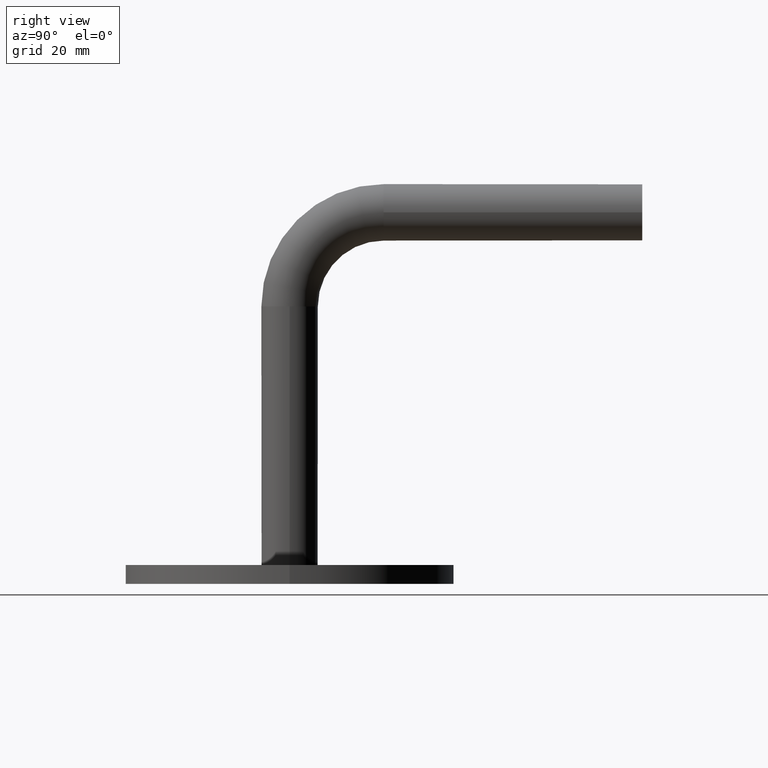
[diagram: clean part render]
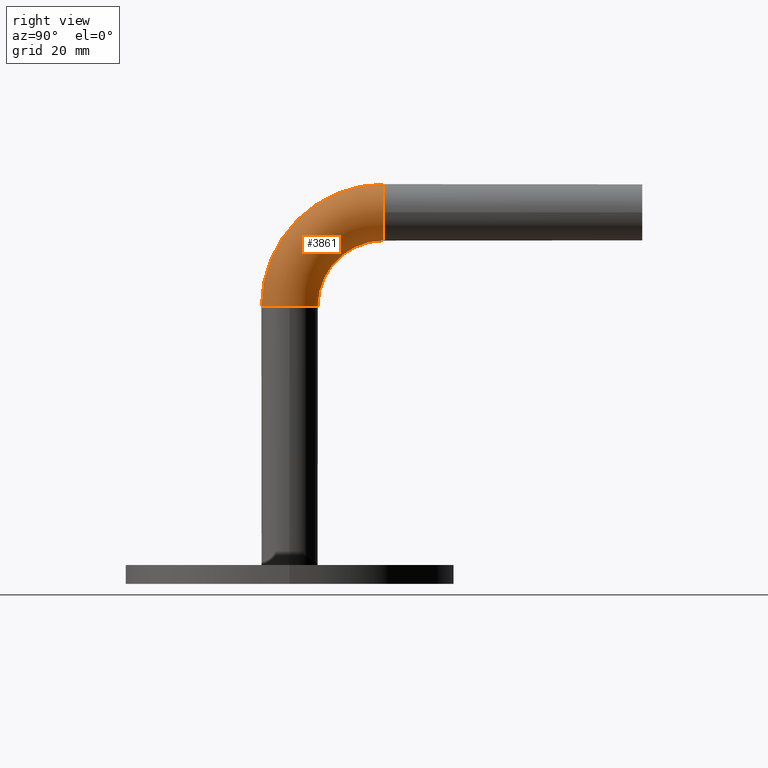
[diagram: same view with one face highlighted and labeled with its STEP entity id]
A machine part, right view. The second image highlights one B-rep face of the part: STEP entity #3861.
In plain terms, the highlighted toroidal blend (fillet) surface has major radius 20 mm and minor (blend) radius 6 mm.
Its self-contained STEP definition (entity closure, byte-faithful):
#117 = DIRECTION ( 'NONE',  ( 0.0000000000000000000, -1.000000000000000000, -6.123233995736766000E-017 ) ) ;
#121 = DIRECTION ( 'NONE',  ( -1.000000000000000000, 0.0000000000000000000, 0.0000000000000000000 ) ) ;
#246 = VERTEX_POINT ( 'NONE', #3327 ) ;
#432 = EDGE_CURVE ( 'NONE', #10340, #13225, #6263, .T. ) ;
#499 = CARTESIAN_POINT ( 'NONE',  ( 0.0000000000000000000, 20.00000000000000000, 59.00000000000000000 ) ) ;
#551 = CARTESIAN_POINT ( 'NONE',  ( 7.347880794884114800E-016, 19.99999999999999600, 72.99999999999998600 ) ) ;
#1333 = DIRECTION ( 'NONE',  ( -1.000000000000000000, 0.0000000000000000000, 0.0000000000000000000 ) ) ;
#1544 = EDGE_CURVE ( 'NONE', #9849, #13225, #3275, .T. ) ;
#1797 = AXIS2_PLACEMENT_3D ( 'NONE', #499, #14059, #11715 ) ;
#2358 = ORIENTED_EDGE ( 'NONE', *, *, #10492, .T. ) ;
#2475 = AXIS2_PLACEMENT_3D ( 'NONE', #4130, #3944, #8486 ) ;
#2946 = AXIS2_PLACEMENT_3D ( 'NONE', #6673, #6826, #7810 ) ;
#2968 = DIRECTION ( 'NONE',  ( -1.000000000000000000, 0.0000000000000000000, 0.0000000000000000000 ) ) ;
#3113 = CARTESIAN_POINT ( 'NONE',  ( 0.0000000000000000000, 20.00000000000000000, 59.00000000000000000 ) ) ;
#3275 = CIRCLE ( 'NONE', #5374, 25.99999999999999600 ) ;
#3282 = EDGE_LOOP ( 'NONE', ( #10878, #9181, #8622, #11745, #2358, #10514 ) ) ;
#3327 = CARTESIAN_POINT ( 'NONE',  ( 7.347880794884119700E-016, 6.000000000000000900, 59.00000000000000000 ) ) ;
#3861 = ADVANCED_FACE ( 'NONE', ( #6593 ), #6963, .T. ) ;
#3944 = DIRECTION ( 'NONE',  ( 0.0000000000000000000, 0.0000000000000000000, -1.000000000000000000 ) ) ;
#4130 = CARTESIAN_POINT ( 'NONE',  ( 0.0000000000000000000, 0.0000000000000000000, 59.00000000000000000 ) ) ;
#4594 = CARTESIAN_POINT ( 'NONE',  ( 0.0000000000000000000, 19.99999999999999600, 84.99999999999998600 ) ) ;
#4727 = CARTESIAN_POINT ( 'NONE',  ( 0.0000000000000000000, 19.99999999999999600, 78.99999999999998600 ) ) ;
#4810 = EDGE_CURVE ( 'NONE', #246, #5757, #8193, .T. ) ;
#5374 = AXIS2_PLACEMENT_3D ( 'NONE', #3113, #7480, #7569 ) ;
#5385 = AXIS2_PLACEMENT_3D ( 'NONE', #7472, #2968, #13199 ) ;
#5757 = VERTEX_POINT ( 'NONE', #9106 ) ;
#6263 = CIRCLE ( 'NONE', #2946, 6.000000000000000900 ) ;
#6593 = FACE_OUTER_BOUND ( 'NONE', #3282, .T. ) ;
#6673 = CARTESIAN_POINT ( 'NONE',  ( 0.0000000000000000000, 19.99999999999999600, 78.99999999999998600 ) ) ;
#6826 = DIRECTION ( 'NONE',  ( 0.0000000000000000000, -1.000000000000000000, -6.123233995736766000E-017 ) ) ;
#6843 = CARTESIAN_POINT ( 'NONE',  ( 0.0000000000000000000, 0.0000000000000000000, 59.00000000000000000 ) ) ;
#6963 = TOROIDAL_SURFACE ( 'NONE', #1797, 20.00000000000000000, 6.000000000000000900 ) ;
#7348 = CARTESIAN_POINT ( 'NONE',  ( 6.000000000000000900, 19.99999999999999600, 78.99999999999998600 ) ) ;
#7472 = CARTESIAN_POINT ( 'NONE',  ( 7.347880794884120700E-016, 20.00000000000000000, 59.00000000000000000 ) ) ;
#7480 = DIRECTION ( 'NONE',  ( -1.000000000000000000, 0.0000000000000000000, 0.0000000000000000000 ) ) ;
#7569 = DIRECTION ( 'NONE',  ( 0.0000000000000000000, 0.0000000000000000000, 1.000000000000000000 ) ) ;
#7810 = DIRECTION ( 'NONE',  ( -1.000000000000000000, 0.0000000000000000000, 0.0000000000000000000 ) ) ;
#8193 = CIRCLE ( 'NONE', #2475, 6.000000000000000900 ) ;
#8486 = DIRECTION ( 'NONE',  ( -1.000000000000000000, 0.0000000000000000000, 0.0000000000000000000 ) ) ;
#8622 = ORIENTED_EDGE ( 'NONE', *, *, #4810, .F. ) ;
#9106 = CARTESIAN_POINT ( 'NONE',  ( 6.000000000000000900, 7.347880794884120700E-016, 59.00000000000000000 ) ) ;
#9181 = ORIENTED_EDGE ( 'NONE', *, *, #9317, .F. ) ;
#9199 = CARTESIAN_POINT ( 'NONE',  ( 0.0000000000000000000, -6.000000000000001800, 59.00000000000000000 ) ) ;
#9317 = EDGE_CURVE ( 'NONE', #5757, #9849, #9934, .T. ) ;
#9849 = VERTEX_POINT ( 'NONE', #9199 ) ;
#9934 = CIRCLE ( 'NONE', #13961, 6.000000000000000900 ) ;
#10035 = VERTEX_POINT ( 'NONE', #551 ) ;
#10340 = VERTEX_POINT ( 'NONE', #7348 ) ;
#10492 = EDGE_CURVE ( 'NONE', #10035, #10340, #12699, .T. ) ;
#10514 = ORIENTED_EDGE ( 'NONE', *, *, #432, .T. ) ;
#10878 = ORIENTED_EDGE ( 'NONE', *, *, #1544, .F. ) ;
#11275 = DIRECTION ( 'NONE',  ( 0.0000000000000000000, 0.0000000000000000000, -1.000000000000000000 ) ) ;
#11715 = DIRECTION ( 'NONE',  ( 0.0000000000000000000, 0.0000000000000000000, 1.000000000000000000 ) ) ;
#11745 = ORIENTED_EDGE ( 'NONE', *, *, #11941, .T. ) ;
#11941 = EDGE_CURVE ( 'NONE', #246, #10035, #12802, .T. ) ;
#12699 = CIRCLE ( 'NONE', #12733, 6.000000000000000900 ) ;
#12733 = AXIS2_PLACEMENT_3D ( 'NONE', #4727, #117, #1333 ) ;
#12802 = CIRCLE ( 'NONE', #5385, 13.99999999999999800 ) ;
#13199 = DIRECTION ( 'NONE',  ( 0.0000000000000000000, 0.0000000000000000000, 1.000000000000000000 ) ) ;
#13225 = VERTEX_POINT ( 'NONE', #4594 ) ;
#13961 = AXIS2_PLACEMENT_3D ( 'NONE', #6843, #11275, #121 ) ;
#14059 = DIRECTION ( 'NONE',  ( -1.000000000000000000, 0.0000000000000000000, 0.0000000000000000000 ) ) ;